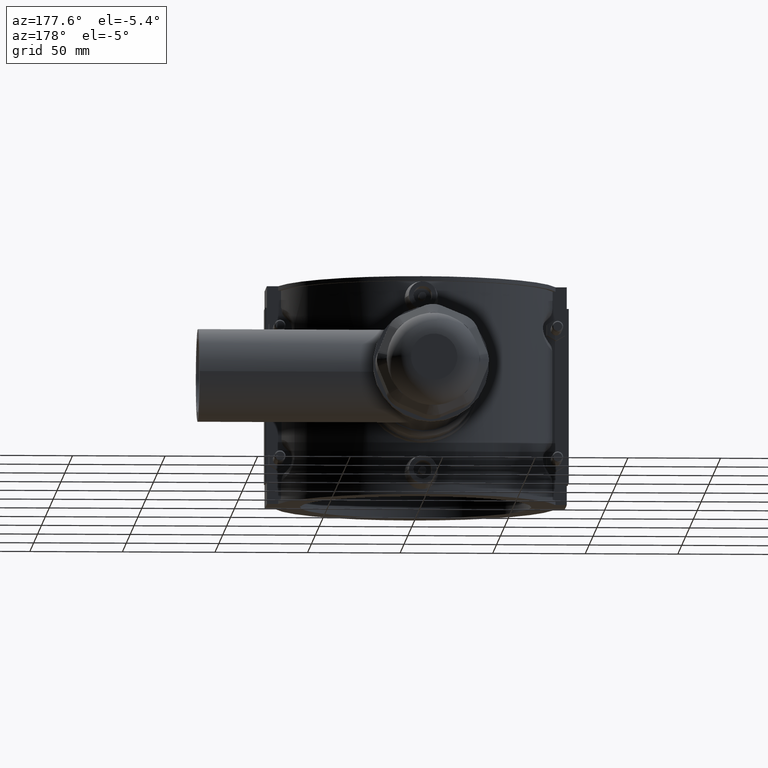
[diagram: clean part render]
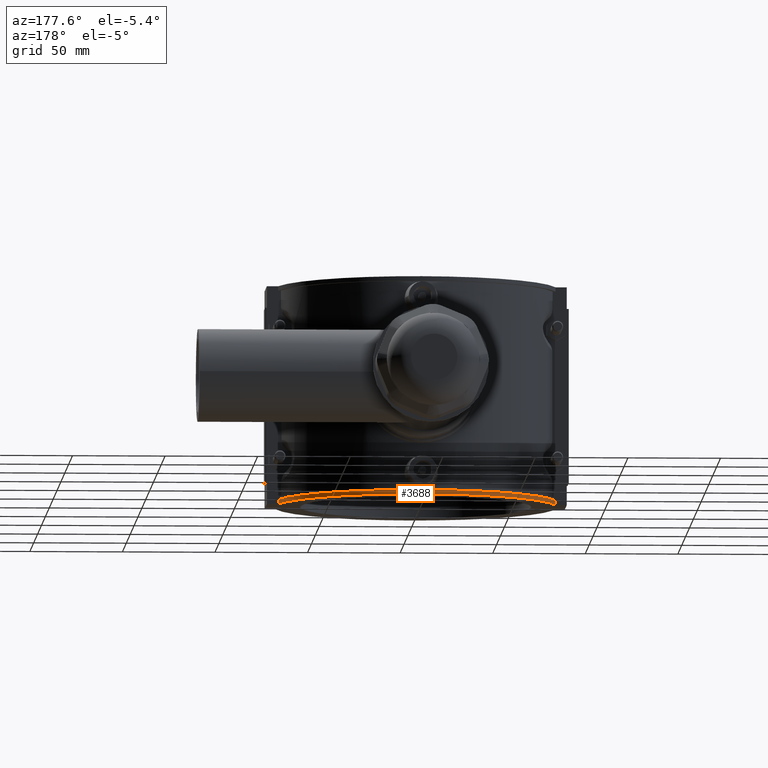
[diagram: same view with one face highlighted and labeled with its STEP entity id]
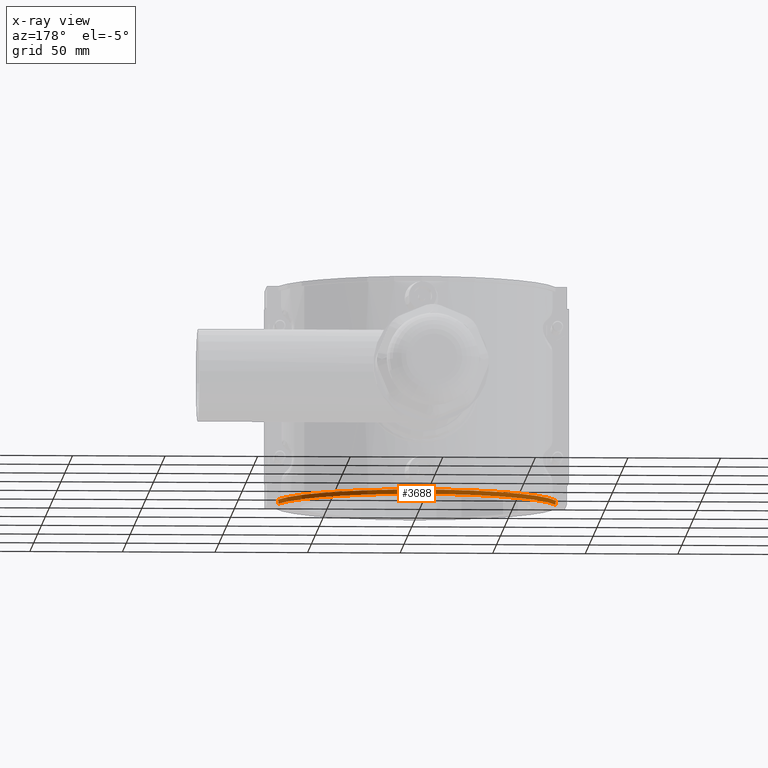
[diagram: x-ray of the same camera — body ghosted, the highlighted face saturated]
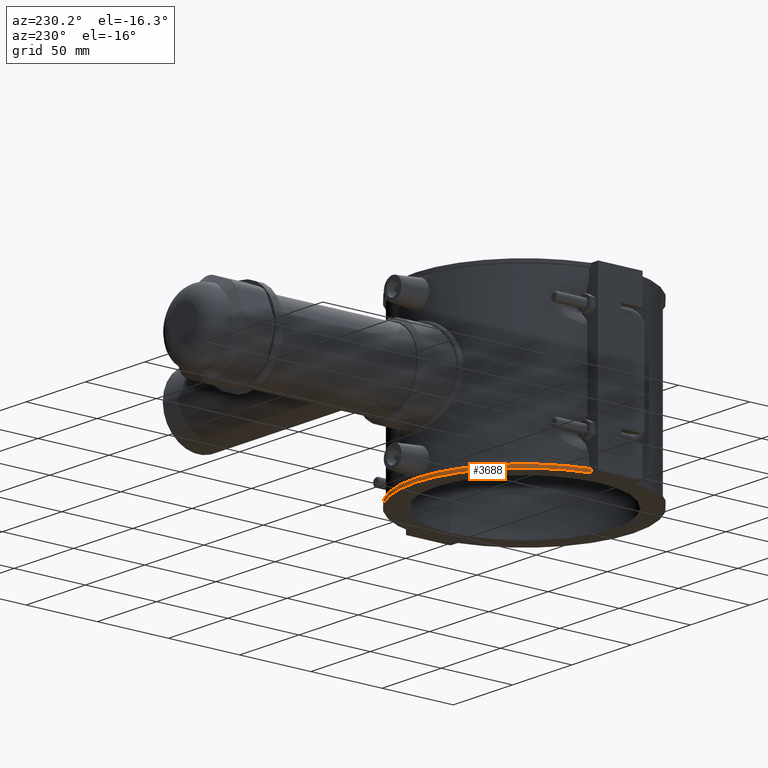
[diagram: same view with one face highlighted and labeled with its STEP entity id]
A machine part, auxiliary view. The second image highlights one B-rep face of the part: STEP entity #3688.
The next image is the same camera in x-ray: the body ghosted, the highlighted face saturated — about 0% of this face is hidden behind the body in this view.
A second angle (auxiliary view) of the same face is appended — the face is thin or edge-on in the first view.
In plain terms, the highlighted cylindrical surface (partial cylindrical patch) has radius 76.5 mm, axis along (0, 0, -1).
Its self-contained STEP definition (entity closure, byte-faithful):
#109=LINE('',#6501,#408);
#110=LINE('',#6504,#409);
#408=VECTOR('',#4446,2.36);
#409=VECTOR('',#4449,2.36);
#839=CYLINDRICAL_SURFACE('',#3943,76.5);
#952=FACE_OUTER_BOUND('',#1196,.T.);
#1196=EDGE_LOOP('',(#2710,#2711,#2712,#2713));
#1432=CIRCLE('',#3944,76.5);
#1433=CIRCLE('',#3945,76.5);
#1615=VERTEX_POINT('',#6497);
#1616=VERTEX_POINT('',#6498);
#1617=VERTEX_POINT('',#6500);
#1618=VERTEX_POINT('',#6502);
#2025=EDGE_CURVE('',#1615,#1616,#1432,.T.);
#2026=EDGE_CURVE('',#1617,#1616,#109,.T.);
#2027=EDGE_CURVE('',#1617,#1618,#1433,.T.);
#2028=EDGE_CURVE('',#1615,#1618,#110,.T.);
#2710=ORIENTED_EDGE('',*,*,#2025,.T.);
#2711=ORIENTED_EDGE('',*,*,#2026,.F.);
#2712=ORIENTED_EDGE('',*,*,#2027,.T.);
#2713=ORIENTED_EDGE('',*,*,#2028,.F.);
#3688=ADVANCED_FACE('',(#952),#839,.T.);
#3943=AXIS2_PLACEMENT_3D('',#6496,#4442,#4443);
#3944=AXIS2_PLACEMENT_3D('',#6499,#4444,#4445);
#3945=AXIS2_PLACEMENT_3D('',#6503,#4447,#4448);
#4442=DIRECTION('center_axis',(0.,0.,-1.));
#4443=DIRECTION('ref_axis',(0.97891910032494,0.204248366013072,0.));
#4444=DIRECTION('center_axis',(0.,0.,1.));
#4445=DIRECTION('ref_axis',(0.97891910032494,0.204248366013072,0.));
#4446=DIRECTION('',(0.,0.,-1.));
#4447=DIRECTION('center_axis',(0.,0.,-1.));
#4448=DIRECTION('ref_axis',(0.97891910032494,0.204248366013072,0.));
#4449=DIRECTION('',(0.,0.,1.));
#6496=CARTESIAN_POINT('Origin',(0.,0.,-59.));
#6497=CARTESIAN_POINT('',(74.8873111748579,15.625,-59.));
#6498=CARTESIAN_POINT('',(-74.8873111748579,15.625,-59.));
#6499=CARTESIAN_POINT('Origin',(0.,0.,-59.));
#6500=CARTESIAN_POINT('',(-74.8873111748579,15.625,-56.64));
#6501=CARTESIAN_POINT('',(-74.8873111748579,15.625,-59.));
#6502=CARTESIAN_POINT('',(74.8873111748579,15.625,-56.64));
#6503=CARTESIAN_POINT('Origin',(0.,0.,-56.64));
#6504=CARTESIAN_POINT('',(74.8873111748579,15.625,-59.));